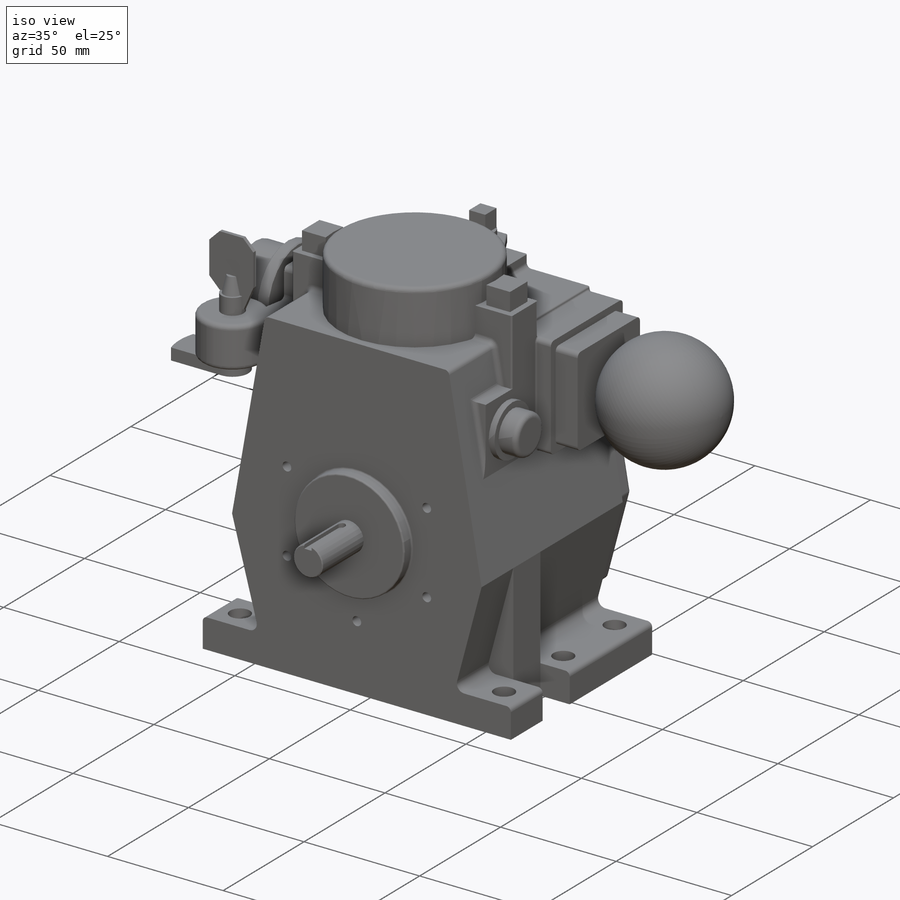
[diagram: iso view]
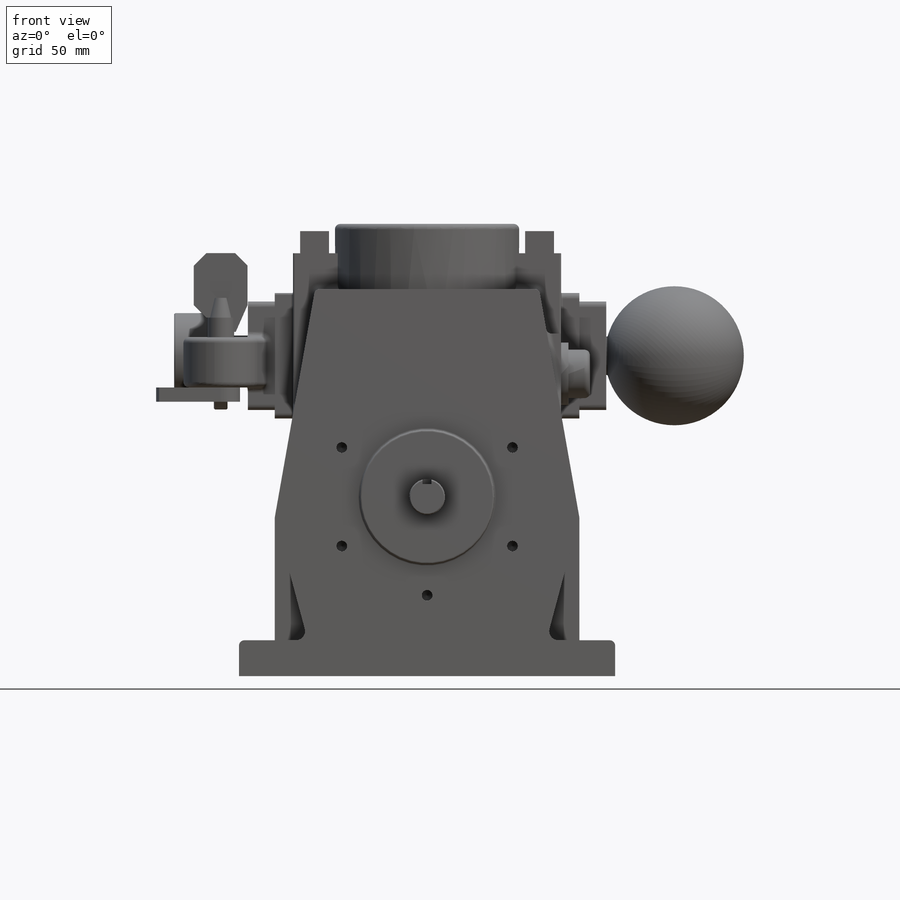
[diagram: front view]
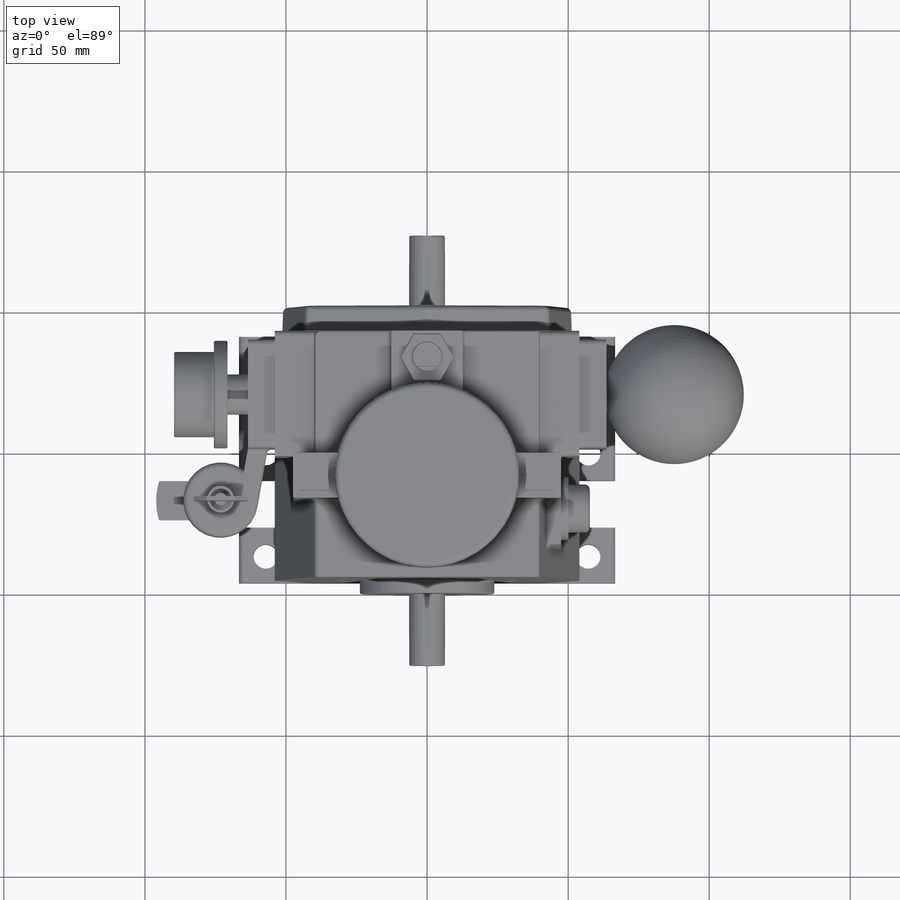
[diagram: top view]
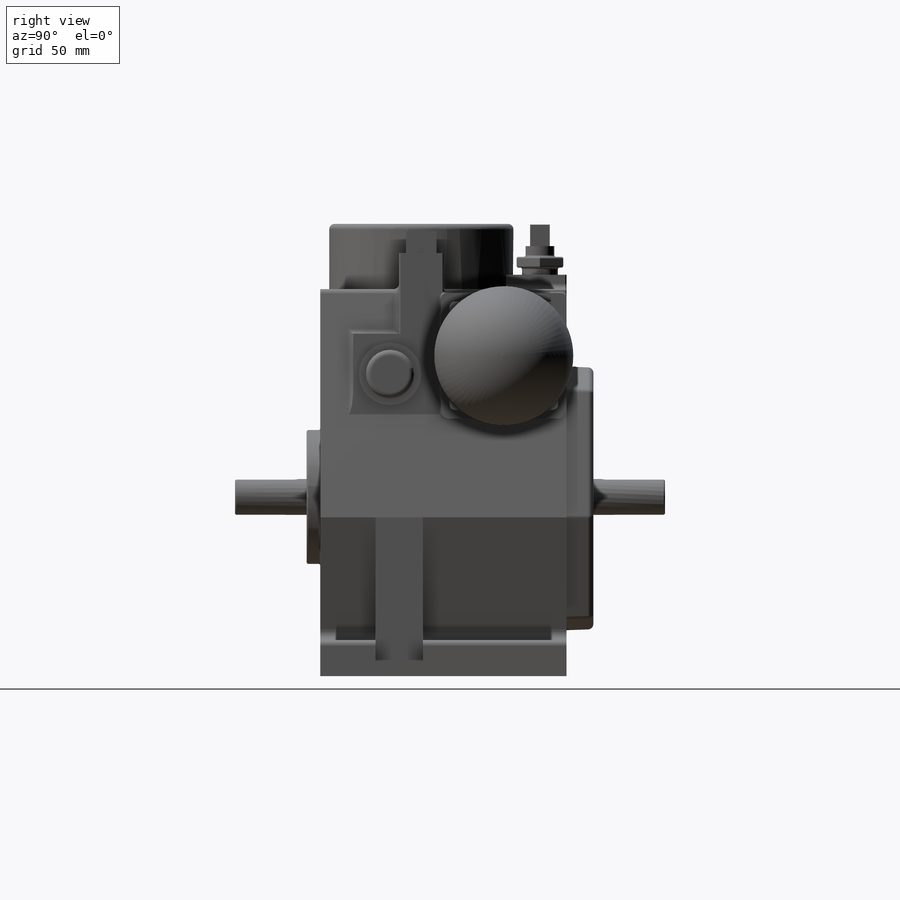
[diagram: right view]
SOLIDWORKS PART (.sldprt)
format: sldprt  version: not decoded by parser v0  size: 1,391,616 bytes
history: native  units: mm
features: sketch x34, extrude x25, plane x14, thread x5, cut_extrude x4, fillet x3, mirror x3, hole x2, material x1, revolve x1, chamfer x1 (+16 scaffold rows collapsed)
feature tree (109):
  scaffold x16  (default folders/planes/origin — collapsed)
  material  "Material <not specified>"
  sketch  "A"  dims[D1=12.7mm]
  extrude  "H"  Depth=152.4mm
  plane  "K"  Offset=25.4mm
  sketch  "B dia"  dims[D1=47.625mm]
  extrude  "X"  Depth=4.826mm
  plane  "M"  Offset=63.5mm
  plane  "W"  Offset=113.538mm
  sketch  "Cross section"  dims[c1.D5=12.7mm c1.D8=69.85mm c1.D1=133.35mm c1.D2=12.7mm c1.D3=~39.052881mm c2.D3=5.0deg c2.D4=~23.57015mm c3.D4=92.5deg c3.D5=7.239mm c3.D6=~5.547512mm c4.D6=75.0deg c4.D7=133.35mm c5.D7=80.0deg c5.D9=114.3mm c5.D3=107.95mm c5.D4=137.16mm c6.D9=23.622mm c6.D4=137.16mm c6.D10=12.7mm c6.D3=107.95mm]
  extrude  "K from end"  Depth=25.4mm
  hole  "#10-24 Tapped Hole1"  Diameter=3.7973mm Depth=14.732mm
  sketch  "Sketch5"  dims[D1=69.85mm D2=6.0]
  sketch  "Sketch4"  dims[hole-wizard template sketch: 47 standard entries collapsed; hole parameters kept: c15.Tap Drill Depth=14.732mm c15.D3=~14.816244mm c15.Drill Angle=118.0deg]
  thread  "Hole Thread1"  Diameter=9.398mm  [1 undecoded]
  thread  "Hole Thread2"  Diameter=9.398mm  [1 undecoded]
  thread  "Hole Thread3"  Diameter=9.398mm  [1 undecoded]
  thread  "Hole Thread4"  Diameter=9.398mm  [1 undecoded]
  thread  "Hole Thread5"  Diameter=9.398mm  [1 undecoded]
  fillet  "Fillet1"  Radius=3.175mm
  plane  "Z"  Offset=57.15mm
  plane  "Plane2"
  sketch  "Sketch6"  dims[D1=1.397mm]
  extrude  "Boss-Extrude1"  [1 undecoded]
  sketch  "Sketch7"  dims[D1=2.9845mm]
  extrude  "Boss-Extrude2"  Depth=9.525mm
  mirror  "Mirror1"
  plane  "J"  Offset=112.268mm
  sketch  "Sketch8"  dims[D1=49.276mm D2=89.4334mm D3=13.716mm]
  revolve  "Revolve1"  Angle=360deg
  plane  "I"  Offset=201.93mm
  sketch  "Sketch9"  dims[D1=14.2875mm]
  extrude  "Boss-Extrude3"  Depth=7.239mm
  sketch  "Sketch10"  dims[D1=38.1mm]
  extrude  "Boss-Extrude4"  Depth=4.826mm
  sketch  "Sketch11"  dims[D1=30.226mm]
  extrude  "Boss-Extrude5"  [1 undecoded]
  plane  "L"  Offset=160.274mm
  sketch  "Sketch12"  dims[D2=65.278mm D1=29.21mm]
  extrude  "Boss-Extrude6"  [1 undecoded]
  sketch  "Sketch13"  dims[c1.D3=~40.674934mm c2.D3=85.0deg c2.D4=16.256mm c2.D5=3.81mm c2.D1=0.0mm c2.D2=2.54mm]
  cut_extrude  "Cut-Extrude1"  [1 undecoded]
  sketch  "Sketch38"  dims[D1=0.0mm]
  cut_extrude  "Cut-Extrude4"  [1 undecoded]
  sketch  "Sketch15"  dims[c1.D2=1.5875mm c1.D1=3.175mm c2.D2=4.6355mm]
  cut_extrude  "Cut-Extrude2"  Depth=12.446mm
  plane  "R"  Offset=44.45mm
  plane  "E"  Offset=68.326mm
  plane  "T"  Offset=31.75mm
  plane  ".5 U"  Offset=57.15mm
  plane  ".5 D"  Offset=57.15mm
  hole  "R (0.339) Diameter Hole1"  Diameter=8.6106mm Depth=12.7mm
  sketch  "Sketch18"
  sketch  "Sketch19"  dims[hole-wizard template sketch: 59 standard entries collapsed; hole parameters kept: c18.Thru Hole Dia.=8.6106mm c18.Thru Hole Depth=12.7mm]
  sketch  "Sketch20"  dims[c1.D1=19.6342mm c1.D2=16.7132mm c2.D1=8.6106mm c3.D1=90.0deg c4.D1=9.6266mm c4.D2=10.2362mm]
  extrude  "Boss-Extrude7"  Depth=25.146mm
  sketch  "Sketch21"
  cut_extrude  "Cut-Extrude3"  [1 undecoded]
  mirror  "Mirror2"
  sketch  "Sketch22"  dims[D1=15.875mm D2=15.875mm]
  extrude  "Boss-Extrude8"  Depth=12.7mm
  sketch  "Sketch23"  dims[D1=2.54mm]
  extrude  "Boss-Extrude9"  Depth=2.54mm
  mirror  "Mirror3"
  sketch  "Sketch24"  dims[c1.D1=10.16mm c1.D2=28.575mm c2.D1=16.129mm]
  extrude  "Boss-Extrude10"  Depth=15.24mm
  sketch  "Sketch25"  dims[c1.D3=22.225mm c1.D1=8.89mm c1.D2=15.24mm c2.D1=3.175mm]
  extrude  "Boss-Extrude11"  Depth=2.54mm
  sketch  "Sketch26"  dims[D1=2.54mm]
  extrude  "Boss-Extrude12"  Depth=7.62mm
  sketch  "Sketch28"  dims[c1.D1=25.4mm c1.D2=12.7mm c1.D3=25.4mm c2.D2=12.7mm]
  extrude  "Boss-Extrude13"  Depth=5.08mm
  sketch  "Sketch29"  dims[c1.D1=12.7mm c1.D2=12.7mm c1.D3=12.7mm c2.D2=12.7mm c2.D3=9.398mm]
  extrude  "Boss-Extrude14"  Depth=2.54mm
  sketch  "Sketch30"  dims[D1=16.51mm]
  extrude  "Boss-Extrude15"  Depth=3.81mm
  sketch  "Sketch31"  dims[D1=10.16mm]
  extrude  "Boss-Extrude16"  Depth=3.81mm
  sketch  "Sketch32"  dims[D1=6.985mm]
  extrude  "Boss-Extrude17"  Depth=7.62mm
  sketch  "Sketch33"  dims[c1.D1=10.795mm c1.D3=~15.367983mm c1.D2=~20.769594mm c2.D2=10.0deg c2.D3=5.08mm c2.D1=5.08mm c3.D3=2.54mm]
  extrude  "Boss-Extrude18"  Depth=17.78mm
  sketch  "Sketch34"  dims[D1=9.525mm]
  extrude  "Boss-Extrude19"  Depth=6.985mm
  sketch  "Sketch35"  dims[D1=7.62mm]
  extrude  "Boss-Extrude20"  Depth=6.985mm
  plane  "Plane3"
  sketch  "Sketch36"  dims[c1.D1=19.05mm c1.D2=22.86mm c1.D3=~6.438574mm c2.D3=45.0deg c2.D4=~4.006476mm c3.D4=45.0deg c3.D5=10.16mm c3.D6=5.08mm c3.D7=1.524mm]
  extrude  "Boss-Extrude23"  Depth=1.524mm
  sketch  "Sketch37"  dims[D1=6.35mm D2=22.86mm]
  extrude  "Boss-Extrude24"  Depth=5.08mm
  chamfer  "Chamfer1"  Distance=0.381mm Angle=45deg
  fillet  "Fillet2"  Radius=1.905mm
  fillet  "Fillet3"  Radius=0.635mm
decode coverage: 67 of 78 modeling features carry decoded parameters
note: ~ marks probable driven/reference dimensions
note: 11 parameter values undecoded
summary: no parameter record found for 6 features
note: suppression state not decoded; provenance and decode notes live in map.json
